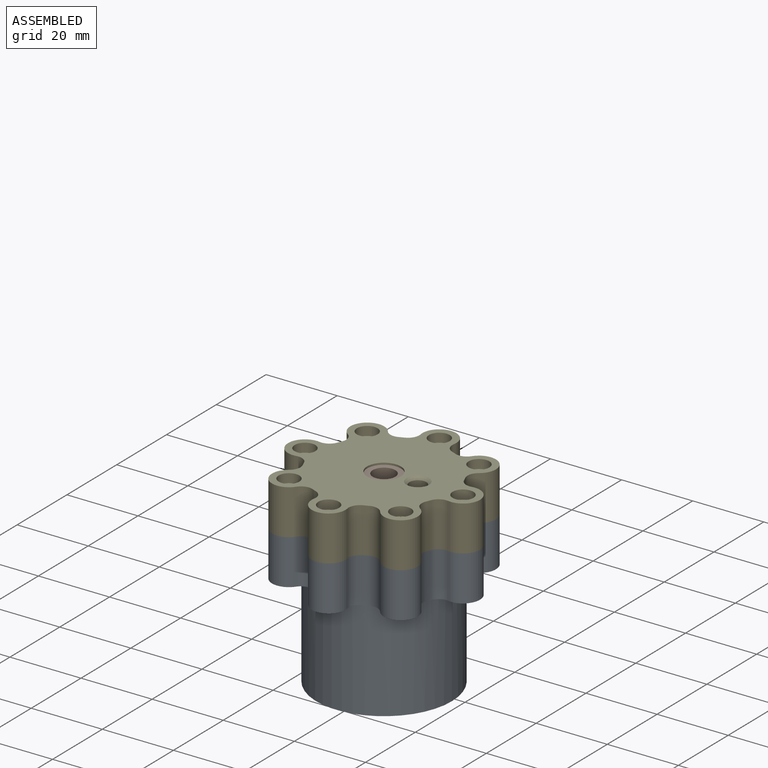
[diagram: assembled view]
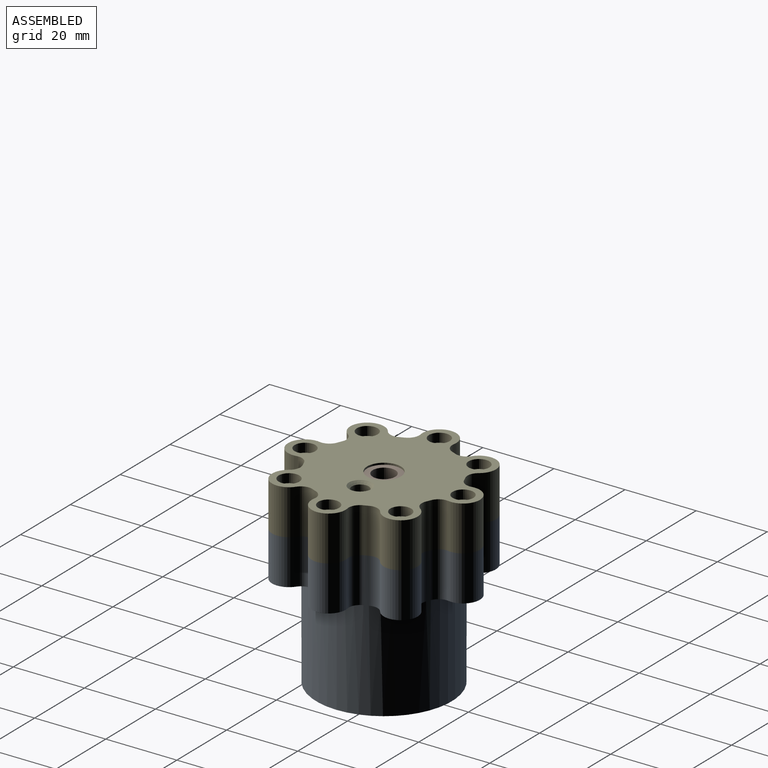
[diagram: assembled view, second angle]
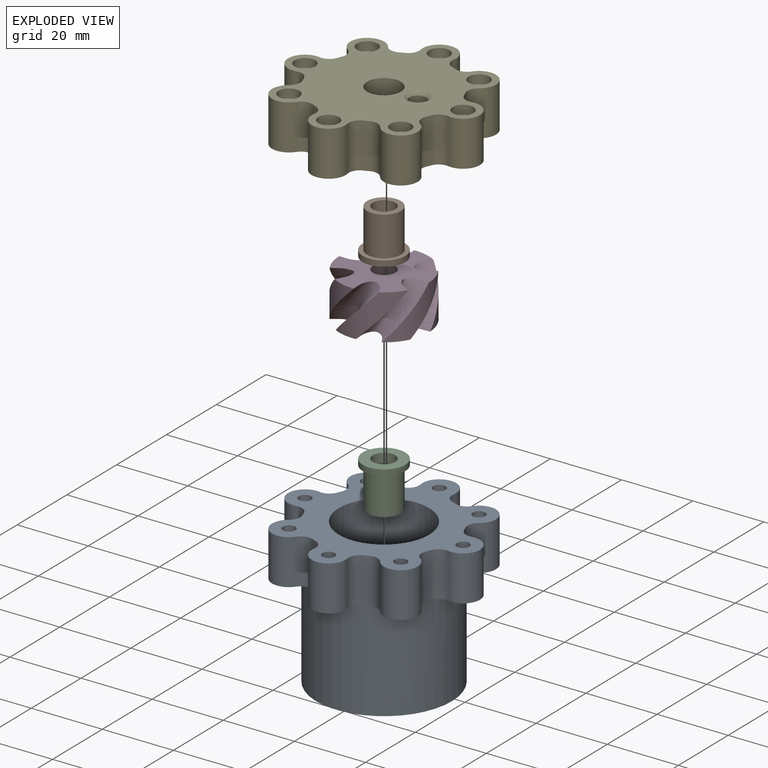
[diagram: exploded view]
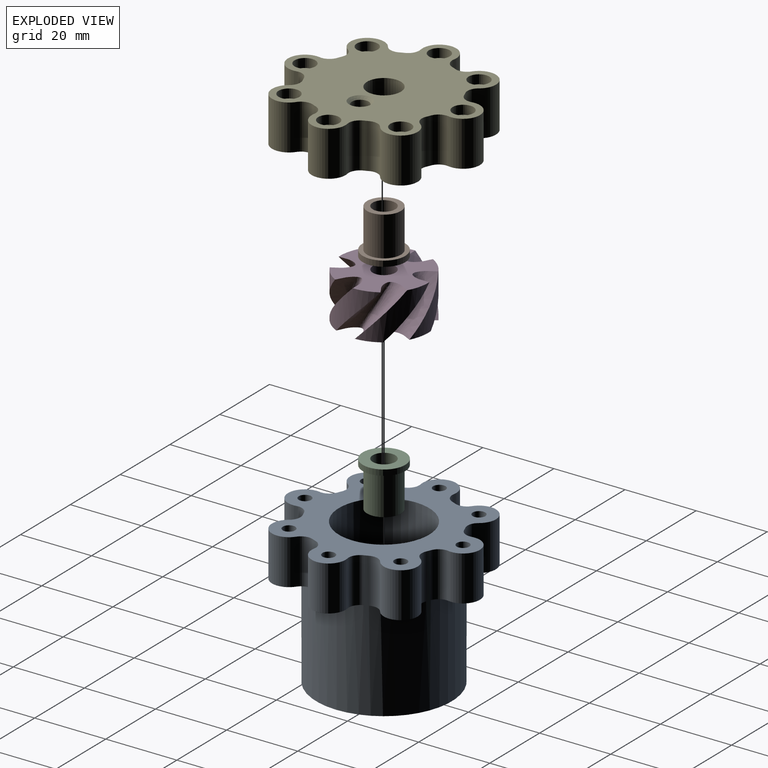
[diagram: exploded view, second angle]
ASSEMBLY  parts=5 mates=4
PART A: 129 faces, bbox 54x54x41.5 mm
  f0: cylinder r=2.53mm len=9.53mm, axis (0,0,1), area 4.3mm2, adj f30,f31,f115,f116
  f1: cylinder r=1.75mm len=10.16mm, axis (0,0,1), area 111.7mm2, adj f34,f114
  f2: plane 12.6x12.6mm, normal (0,0,-1), area 40.7mm2, adj f27,f35,f43,f44,f108,f109,f110,f111
  f3: cylinder r=1.75mm len=10.16mm, axis (0,0,1), area 111.7mm2, adj f34,f107
  f4: plane 13.39x9.15mm, normal (0,0,-1), area 40.7mm2, adj f27,f42,f45,f46,f101,f102,f103,f104
  f5: cylinder r=1.75mm len=10.16mm, axis (0,0,1), area 111.7mm2, adj f34,f100
  f6: plane 12.6x12.6mm, normal (0,0,-1), area 40.7mm2, adj f27,f41,f47,f48,f94,f95,f96,f97
  f7: cylinder r=1.75mm len=10.16mm, axis (0,0,1), area 111.7mm2, adj f34,f93
  f8: plane 13.39x9.15mm, normal (0,0,-1), area 40.7mm2, adj f27,f40,f49,f50,f87,f88,f89,f90
  f9: cylinder r=1.75mm len=10.16mm, axis (0,0,1), area 111.7mm2, adj f34,f86
  f10: plane 12.6x12.6mm, normal (0,0,-1), area 40.7mm2, adj f27,f39,f51,f52,f80,f81,f82,f83
  f11: cylinder r=1.75mm len=10.16mm, axis (0,0,1), area 111.7mm2, adj f34,f79
  f12: plane 13.39x9.15mm, normal (0,0,-1), area 40.7mm2, adj f27,f38,f53,f54,f73,f74,f75,f76
  f13: cylinder r=1.75mm len=10.16mm, axis (0,0,1), area 111.7mm2, adj f34,f72
  f14: plane 12.6x12.6mm, normal (0,0,-1), area 40.7mm2, adj f27,f37,f55,f56,f66,f67,f68,f69
  f15: cylinder r=1.75mm len=10.16mm, axis (0,0,1), area 111.7mm2, adj f34,f65
  f16: plane 13.39x9.15mm, normal (0,0,-1), area 40.7mm2, adj f27,f36,f57,f58,f59,f60,f61,f62
  f17: plane 25.08x22.56mm, normal (0,0,1), area 152.6mm2, adj f19,f20,f21,f22,f23,f24,f25,f26
  f18: cylinder r=4.76mm len=14.8mm, axis (0,0,1), area 442.7mm2, adj f31,f33
  f19: plane 25.4x1.49mm, normal (-0.5,0.87,0), area 43.7mm2, adj f17,f30,f120,f127
  f20: cylinder r=12.7mm len=40.64mm, axis (0,0,1), area 2536.1mm2, adj f17,f30,f34,f117,f118,f119,f120,f121
  f21: plane 25.4x1.72mm, normal (-1,0,0), area 43.7mm2, adj f17,f30,f121,f123
  f22: plane 25.4x1.49mm, normal (0.5,-0.87,0), area 43.7mm2, adj f17,f30,f119,f128
  f23: cylinder r=7.94mm len=25.4mm, axis (0,0,1), area 249mm2, adj f17,f30,f125,f128
  f24: plane 25.4x1.49mm, normal (0.5,0.87,0), area 43.7mm2, adj f17,f30,f117,f126
  f25: cylinder r=7.94mm len=25.4mm, axis (0,0,1), area 249mm2, adj f17,f30,f124,f126
  f26: cylinder r=7.94mm len=25.4mm, axis (0,0,1), area 249mm2, adj f17,f30,f123,f127
  f27: cylinder r=19.05mm len=40.64mm, axis (0,0,1), area 3474.5mm2, adj f2,f4,f6,f8,f10,f12,f14,f16
  f28: plane 25.4x1.49mm, normal (-0.5,-0.87,0), area 43.7mm2, adj f17,f30,f118,f125
  f29: plane 25.4x1.72mm, normal (1,0,0), area 43.7mm2, adj f17,f30,f122,f124
  f30: plane 38.1x38.1mm, normal (0,0,-1), area 877.8mm2, adj f0,f19,f20,f21,f22,f23,f24,f25
  f31: plane 9.53x9.53mm, normal (0,0,1), area 41.4mm2, adj f0,f18,f115,f116
  f32: cylinder r=6.22mm len=12.45mm, axis (0,0,1), area 42.2mm2, adj f17,f33
  f33: plane 12.45x12.45mm, normal (0,0,1), area 50.4mm2, adj f18,f32
  f34: plane 53.98x53.98mm, normal (0,0,1), area 1108mm2, adj f1,f3,f5,f7,f9,f11,f13,f15
  f35: cylinder r=4.76mm len=12.7mm, axis (0,0,1), area 211.7mm2, adj f2,f34,f43,f44
  f36: cylinder r=4.76mm len=12.7mm, axis (0,0,1), area 211.7mm2, adj f16,f34,f57,f58
  f37: cylinder r=4.76mm len=12.7mm, axis (0,0,1), area 211.7mm2, adj f14,f34,f55,f56
  f38: cylinder r=4.76mm len=12.7mm, axis (0,0,1), area 211.7mm2, adj f12,f34,f53,f54
  f39: cylinder r=4.76mm len=12.7mm, axis (0,0,1), area 211.7mm2, adj f10,f34,f51,f52
  f40: cylinder r=4.76mm len=12.7mm, axis (0,0,1), area 211.7mm2, adj f8,f34,f49,f50
  f41: cylinder r=4.76mm len=12.7mm, axis (0,0,1), area 211.7mm2, adj f6,f34,f47,f48
  f42: cylinder r=4.76mm len=12.7mm, axis (0,0,1), area 211.7mm2, adj f4,f34,f45,f46
  f43: cylinder r=3.17mm len=12.7mm, axis (0,0,-1), area 56.1mm2, adj f2,f27,f34,f35
  f44: cylinder r=3.17mm len=12.7mm, axis (0,0,-1), area 56.1mm2, adj f2,f27,f34,f35
  f45: cylinder r=3.17mm len=12.7mm, axis (0,0,-1), area 56.1mm2, adj f4,f27,f34,f42
  f46: cylinder r=3.17mm len=12.7mm, axis (0,0,-1), area 56.1mm2, adj f4,f27,f34,f42
  f47: cylinder r=3.17mm len=12.7mm, axis (0,0,-1), area 56.1mm2, adj f6,f27,f34,f41
  f48: cylinder r=3.17mm len=12.7mm, axis (0,0,-1), area 56.1mm2, adj f6,f27,f34,f41
  f49: cylinder r=3.17mm len=12.7mm, axis (0,0,-1), area 56.1mm2, adj f8,f27,f34,f40
  f50: cylinder r=3.17mm len=12.7mm, axis (0,0,-1), area 56.1mm2, adj f8,f27,f34,f40
  f51: cylinder r=3.17mm len=12.7mm, axis (0,0,-1), area 56.1mm2, adj f10,f27,f34,f39
  f52: cylinder r=3.17mm len=12.7mm, axis (0,0,-1), area 56.1mm2, adj f10,f27,f34,f39
  f53: cylinder r=3.17mm len=12.7mm, axis (0,0,-1), area 56.1mm2, adj f12,f27,f34,f38
  f54: cylinder r=3.17mm len=12.7mm, axis (0,0,-1), area 56.1mm2, adj f12,f27,f34,f38
  f55: cylinder r=3.17mm len=12.7mm, axis (0,0,-1), area 56.1mm2, adj f14,f27,f34,f37
  f56: cylinder r=3.17mm len=12.7mm, axis (0,0,-1), area 56.1mm2, adj f14,f27,f34,f37
  f57: cylinder r=3.17mm len=12.7mm, axis (0,0,-1), area 56.1mm2, adj f16,f27,f34,f36
  f58: cylinder r=3.17mm len=12.7mm, axis (0,0,-1), area 56.1mm2, adj f16,f27,f34,f36
  f59: plane 3.3x2.54mm, normal (0,-1,0), area 8.4mm2, adj f16,f60,f64,f65
  f60: plane 2.86x2.54mm, normal (-0.87,-0.5,0), area 8.4mm2, adj f16,f59,f61,f65
  f61: plane 2.86x2.54mm, normal (-0.87,0.5,0), area 8.4mm2, adj f16,f60,f62,f65
  f62: plane 3.3x2.54mm, normal (0,1,0), area 8.4mm2, adj f16,f61,f63,f65
  f63: plane 2.86x2.54mm, normal (0.87,0.5,0), area 8.4mm2, adj f16,f62,f64,f65
  f64: plane 2.86x2.54mm, normal (0.87,-0.5,0), area 8.4mm2, adj f16,f59,f63,f65
  f65: plane 6.6x5.72mm, normal (0,0,-1), area 18.7mm2, adj f15,f59,f60,f61,f62,f63,f64
  f66: plane 2.54x2.33mm, normal (0.71,-0.71,0), area 8.4mm2, adj f14,f67,f71,f72
  f67: plane 3.19x2.54mm, normal (-0.26,-0.97,0), area 8.4mm2, adj f14,f66,f68,f72
  f68: plane 3.19x2.54mm, normal (-0.97,-0.26,0), area 8.4mm2, adj f14,f67,f69,f72
  f69: plane 2.54x2.33mm, normal (-0.71,0.71,0), area 8.4mm2, adj f14,f68,f70,f72
  f70: plane 3.19x2.54mm, normal (0.26,0.97,0), area 8.4mm2, adj f14,f69,f71,f72
  f71: plane 3.19x2.54mm, normal (0.97,0.26,0), area 8.4mm2, adj f14,f66,f70,f72
  f72: plane 6.37x6.37mm, normal (0,0,-1), area 18.7mm2, adj f13,f66,f67,f68,f69,f70,f71
  f73: plane 3.3x2.54mm, normal (1,0,0), area 8.4mm2, adj f12,f74,f78,f79
  f74: plane 2.86x2.54mm, normal (0.5,-0.87,0), area 8.4mm2, adj f12,f73,f75,f79
  f75: plane 2.86x2.54mm, normal (-0.5,-0.87,0), area 8.4mm2, adj f12,f74,f76,f79
  f76: plane 3.3x2.54mm, normal (-1,0,0), area 8.4mm2, adj f12,f75,f77,f79
  f77: plane 2.86x2.54mm, normal (-0.5,0.87,0), area 8.4mm2, adj f12,f76,f78,f79
  f78: plane 2.86x2.54mm, normal (0.5,0.87,0), area 8.4mm2, adj f12,f73,f77,f79
  f79: plane 6.6x5.72mm, normal (0,0,-1), area 18.7mm2, adj f11,f73,f74,f75,f76,f77,f78
  f80: plane 2.54x2.33mm, normal (0.71,0.71,0), area 8.4mm2, adj f10,f81,f85,f86
  f81: plane 3.19x2.54mm, normal (0.97,-0.26,0), area 8.4mm2, adj f10,f80,f82,f86
  f82: plane 3.19x2.54mm, normal (0.26,-0.97,0), area 8.4mm2, adj f10,f81,f83,f86
  f83: plane 2.54x2.33mm, normal (-0.71,-0.71,0), area 8.4mm2, adj f10,f82,f84,f86
  f84: plane 3.19x2.54mm, normal (-0.97,0.26,0), area 8.4mm2, adj f10,f83,f85,f86
  f85: plane 3.19x2.54mm, normal (-0.26,0.97,0), area 8.4mm2, adj f10,f80,f84,f86
  f86: plane 6.37x6.37mm, normal (0,0,-1), area 18.7mm2, adj f9,f80,f81,f82,f83,f84,f85
  f87: plane 3.3x2.54mm, normal (0,1,0), area 8.4mm2, adj f8,f88,f92,f93
  f88: plane 2.86x2.54mm, normal (0.87,0.5,0), area 8.4mm2, adj f8,f87,f89,f93
  f89: plane 2.86x2.54mm, normal (0.87,-0.5,0), area 8.4mm2, adj f8,f88,f90,f93
  f90: plane 3.3x2.54mm, normal (0,-1,0), area 8.4mm2, adj f8,f89,f91,f93
  f91: plane 2.86x2.54mm, normal (-0.87,-0.5,0), area 8.4mm2, adj f8,f90,f92,f93
  f92: plane 2.86x2.54mm, normal (-0.87,0.5,0), area 8.4mm2, adj f8,f87,f91,f93
  f93: plane 6.6x5.72mm, normal (0,0,-1), area 18.7mm2, adj f7,f87,f88,f89,f90,f91,f92
  f94: plane 2.54x2.33mm, normal (-0.71,0.71,0), area 8.4mm2, adj f6,f95,f99,f100
  f95: plane 3.19x2.54mm, normal (0.26,0.97,0), area 8.4mm2, adj f6,f94,f96,f100
  f96: plane 3.19x2.54mm, normal (0.97,0.26,0), area 8.4mm2, adj f6,f95,f97,f100
  f97: plane 2.54x2.33mm, normal (0.71,-0.71,0), area 8.4mm2, adj f6,f96,f98,f100
  f98: plane 3.19x2.54mm, normal (-0.26,-0.97,0), area 8.4mm2, adj f6,f97,f99,f100
  f99: plane 3.19x2.54mm, normal (-0.97,-0.26,0), area 8.4mm2, adj f6,f94,f98,f100
  f100: plane 6.37x6.37mm, normal (0,0,-1), area 18.7mm2, adj f5,f94,f95,f96,f97,f98,f99
  f101: plane 3.3x2.54mm, normal (-1,0,0), area 8.4mm2, adj f4,f102,f106,f107
  f102: plane 2.86x2.54mm, normal (-0.5,0.87,0), area 8.4mm2, adj f4,f101,f103,f107
  f103: plane 2.86x2.54mm, normal (0.5,0.87,0), area 8.4mm2, adj f4,f102,f104,f107
  f104: plane 3.3x2.54mm, normal (1,0,0), area 8.4mm2, adj f4,f103,f105,f107
  f105: plane 2.86x2.54mm, normal (0.5,-0.87,0), area 8.4mm2, adj f4,f104,f106,f107
  f106: plane 2.86x2.54mm, normal (-0.5,-0.87,0), area 8.4mm2, adj f4,f101,f105,f107
  f107: plane 6.6x5.72mm, normal (0,0,-1), area 18.7mm2, adj f3,f101,f102,f103,f104,f105,f106
  f108: plane 2.54x2.33mm, normal (-0.71,-0.71,0), area 8.4mm2, adj f2,f109,f113,f114
  f109: plane 3.19x2.54mm, normal (-0.97,0.26,0), area 8.4mm2, adj f2,f108,f110,f114
  f110: plane 3.19x2.54mm, normal (-0.26,0.97,0), area 8.4mm2, adj f2,f109,f111,f114
  f111: plane 2.54x2.33mm, normal (0.71,0.71,0), area 8.4mm2, adj f2,f110,f112,f114
  f112: plane 3.19x2.54mm, normal (0.97,-0.26,0), area 8.4mm2, adj f2,f111,f113,f114
  f113: plane 3.19x2.54mm, normal (0.26,-0.97,0), area 8.4mm2, adj f2,f108,f112,f114
  f114: plane 6.37x6.37mm, normal (0,0,-1), area 18.7mm2, adj f1,f108,f109,f110,f111,f112,f113
  f115: bspline ~10.79x8.35mm, area 183.2mm2, adj f0,f30,f31,f116
  f116: bspline ~11x8.35mm, area 183mm2, adj f0,f30,f31,f115
  f117: cylinder r=1.59mm len=25.4mm, axis (0,0,1), area 78.1mm2, adj f17,f20,f24,f30
  f118: cylinder r=1.59mm len=25.4mm, axis (0,0,1), area 78.1mm2, adj f17,f20,f28,f30
  f119: cylinder r=1.59mm len=25.4mm, axis (0,0,1), area 78.1mm2, adj f17,f20,f22,f30
  f120: cylinder r=1.59mm len=25.4mm, axis (0,0,1), area 78.1mm2, adj f17,f19,f20,f30
  f121: cylinder r=1.59mm len=25.4mm, axis (0,0,1), area 78.1mm2, adj f17,f20,f21,f30
  f122: cylinder r=1.59mm len=25.4mm, axis (0,0,1), area 78.1mm2, adj f17,f20,f29,f30
  f123: cylinder r=1.59mm len=25.4mm, axis (0,0,1), area 46mm2, adj f17,f21,f26,f30
  f124: cylinder r=1.59mm len=25.4mm, axis (0,0,1), area 46mm2, adj f17,f25,f29,f30
  f125: cylinder r=1.59mm len=25.4mm, axis (0,0,1), area 46mm2, adj f17,f23,f28,f30
  f126: cylinder r=1.59mm len=25.4mm, axis (0,0,1), area 46mm2, adj f17,f24,f25,f30
  f127: cylinder r=1.59mm len=25.4mm, axis (0,0,1), area 46mm2, adj f17,f19,f26,f30
  f128: cylinder r=1.59mm len=25.4mm, axis (0,0,1), area 46mm2, adj f17,f22,f23,f30
PART B: 6 faces, bbox 11.9x11.9x12.7 mm
  f0: cylinder r=3.17mm len=12.7mm, axis (0,0,-1), area 253.4mm2, adj f2,f3
  f1: cylinder r=4.76mm len=11.11mm, axis (0,0,-1), area 332.5mm2, adj f2,f5
  f2: plane 9.53x9.53mm, normal (0,0,1), area 39.6mm2, adj f0,f1
  f3: plane 11.94x11.94mm, normal (0,0,-1), area 80.3mm2, adj f0,f4
  f4: cylinder r=5.97mm len=11.94mm, axis (0,0,-1), area 59.5mm2, adj f3,f5
  f5: plane 11.94x11.94mm, normal (0,0,1), area 40.7mm2, adj f1,f4
PART C: same geometry as B
PART D: 27 faces, bbox 25.7x25.8x29.1 mm
  f0: cylinder r=12.57mm len=12.85mm, axis (0,0,-1), area 87.3mm2, adj f7,f8,f23,f24
  f1: cylinder r=12.57mm len=17.12mm, axis (0,0,-1), area 87.3mm2, adj f7,f8,f20,f21
  f2: cylinder r=12.57mm len=16.8mm, axis (0,0,-1), area 87.3mm2, adj f7,f8,f17,f18
  f3: cylinder r=12.57mm len=12.85mm, axis (0,0,-1), area 87.3mm2, adj f7,f8,f14,f15
  f4: cylinder r=12.57mm len=17.12mm, axis (0,0,-1), area 87.3mm2, adj f7,f8,f11,f12
  f5: cylinder r=3.17mm len=12.7mm, axis (0,0,-1), area 253.4mm2, adj f7,f8
  f6: cylinder r=12.57mm len=16.8mm, axis (0,0,-1), area 87.3mm2, adj f7,f8,f9,f26
  f7: plane 25.15x25.15mm, normal (0,0,1), area 317.4mm2, adj f0,f1,f2,f3,f4,f5,f6,f9
  f8: plane 25.15x25.12mm, normal (0,0,-1), area 317.5mm2, adj f0,f1,f2,f3,f4,f5,f6,f9
  f9: bspline ~17.1x14.13mm, area 40.6mm2, adj f6,f7,f8,f10
  f10: bspline ~29.15x12.46mm, area 117.4mm2, adj f7,f8,f9,f11
  f11: bspline ~17.1x12.26mm, area 40.6mm2, adj f4,f7,f8,f10
  f12: bspline ~17.1x15.63mm, area 40.6mm2, adj f4,f7,f8,f13
  f13: bspline ~29.15x15.76mm, area 117.4mm2, adj f7,f8,f12,f14
  f14: bspline ~17.1x14.59mm, area 40.6mm2, adj f3,f7,f8,f13
  f15: bspline ~17.1x12.95mm, area 40.6mm2, adj f3,f7,f8,f16
  f16: bspline ~29.15x14.84mm, area 117.4mm2, adj f7,f8,f15,f17
  f17: bspline ~12.7x12.06mm, area 40.6mm2, adj f2,f7,f8,f16
  f18: bspline ~17.1x14.13mm, area 40.6mm2, adj f2,f7,f8,f19
  f19: bspline ~29.15x12.46mm, area 117.4mm2, adj f7,f8,f18,f20
  f20: bspline ~17.1x12.26mm, area 40.6mm2, adj f1,f7,f8,f19
  f21: bspline ~17.1x15.63mm, area 40.6mm2, adj f1,f7,f8,f22
  f22: bspline ~29.15x15.76mm, area 117.4mm2, adj f7,f8,f21,f23
  f23: bspline ~17.1x14.59mm, area 40.6mm2, adj f0,f7,f8,f22
  f24: bspline ~17.1x12.95mm, area 40.6mm2, adj f0,f7,f8,f25
  f25: bspline ~29.15x14.84mm, area 117.4mm2, adj f7,f8,f24,f26
  f26: bspline ~17.1x15.5mm, area 40.6mm2, adj f6,f7,f8,f25
PART E: 64 faces, bbox 54x54x12.7 mm
  f0: cylinder r=4.76mm len=11.62mm, axis (0,0,-1), area 347.7mm2, adj f27,f45
  f1: cylinder r=19.05mm len=12.7mm, axis (0,0,-1), area 16.3mm2, adj f26,f27,f60,f61
  f2: cylinder r=4.76mm len=12.7mm, axis (0,0,-1), area 211.7mm2, adj f26,f27,f46,f61
  f3: cylinder r=19.05mm len=12.7mm, axis (0,0,-1), area 16.3mm2, adj f26,f27,f46,f47
  f4: cylinder r=4.76mm len=12.7mm, axis (0,0,-1), area 211.7mm2, adj f26,f27,f47,f48
  f5: cylinder r=19.05mm len=12.7mm, axis (0,0,-1), area 16.3mm2, adj f26,f27,f48,f49
  f6: cylinder r=4.76mm len=12.7mm, axis (0,0,-1), area 211.7mm2, adj f26,f27,f49,f50
  f7: cylinder r=19.05mm len=12.7mm, axis (0,0,-1), area 16.3mm2, adj f26,f27,f50,f51
  f8: cylinder r=4.76mm len=12.7mm, axis (0,0,-1), area 211.7mm2, adj f26,f27,f51,f52
  f9: cylinder r=19.05mm len=12.7mm, axis (0,0,-1), area 16.3mm2, adj f26,f27,f52,f53
  f10: cylinder r=4.76mm len=12.7mm, axis (0,0,-1), area 211.7mm2, adj f26,f27,f53,f54
  f11: cylinder r=19.05mm len=12.7mm, axis (0,0,-1), area 16.3mm2, adj f26,f27,f54,f55
  f12: cylinder r=4.76mm len=12.7mm, axis (0,0,-1), area 211.7mm2, adj f26,f27,f55,f56
  f13: cylinder r=19.05mm len=12.7mm, axis (0,0,-1), area 16.3mm2, adj f26,f27,f56,f57
  f14: cylinder r=4.76mm len=12.7mm, axis (0,0,-1), area 211.7mm2, adj f26,f27,f57,f58
  f15: cylinder r=19.05mm len=12.7mm, axis (0,0,-1), area 16.3mm2, adj f26,f27,f58,f59
  f16: cylinder r=2.38mm len=11.11mm, axis (0,0,-1), area 166.3mm2, adj f62,f63
  f17: cylinder r=1.75mm len=10.16mm, axis (0,0,-1), area 111.7mm2, adj f26,f35
  f18: cylinder r=1.75mm len=10.16mm, axis (0,0,-1), area 111.7mm2, adj f26,f37
  f19: cylinder r=1.75mm len=10.16mm, axis (0,0,-1), area 111.7mm2, adj f26,f39
  f20: cylinder r=1.75mm len=10.16mm, axis (0,0,-1), area 111.7mm2, adj f26,f41
  f21: cylinder r=1.75mm len=10.16mm, axis (0,0,-1), area 111.7mm2, adj f26,f43
  f22: cylinder r=1.75mm len=10.16mm, axis (0,0,-1), area 111.7mm2, adj f26,f29
  f23: cylinder r=1.75mm len=10.16mm, axis (0,0,-1), area 111.7mm2, adj f26,f31
  f24: cylinder r=1.75mm len=10.16mm, axis (0,0,-1), area 111.7mm2, adj f26,f33
  f25: cylinder r=4.76mm len=12.7mm, axis (0,0,-1), area 211.7mm2, adj f26,f27,f59,f60
  f26: plane 53.98x53.98mm, normal (0,0,1), area 1461.3mm2, adj f1,f2,f3,f4,f5,f6,f7,f8
  f27: plane 53.98x53.98mm, normal (0,0,-1), area 1374.3mm2, adj f0,f1,f2,f3,f4,f5,f6,f7
  f28: cylinder r=2.92mm len=5.84mm, axis (0,0,-1), area 46.6mm2, adj f27,f29
  f29: plane 5.84x5.84mm, normal (0,0,-1), area 17.2mm2, adj f22,f28
  f30: cylinder r=2.92mm len=5.84mm, axis (0,0,-1), area 46.6mm2, adj f27,f31
  f31: plane 5.84x5.84mm, normal (0,0,-1), area 17.2mm2, adj f23,f30
  f32: cylinder r=2.92mm len=5.84mm, axis (0,0,-1), area 46.6mm2, adj f27,f33
  f33: plane 5.84x5.84mm, normal (0,0,-1), area 17.2mm2, adj f24,f32
  f34: cylinder r=2.92mm len=5.84mm, axis (0,0,-1), area 46.6mm2, adj f27,f35
  f35: plane 5.84x5.84mm, normal (0,0,-1), area 17.2mm2, adj f17,f34
  f36: cylinder r=2.92mm len=5.84mm, axis (0,0,-1), area 46.6mm2, adj f27,f37
  f37: plane 5.84x5.84mm, normal (0,0,-1), area 17.2mm2, adj f18,f36
  f38: cylinder r=2.92mm len=5.84mm, axis (0,0,-1), area 46.6mm2, adj f27,f39
  f39: plane 5.84x5.84mm, normal (0,0,-1), area 17.2mm2, adj f19,f38
  f40: cylinder r=2.92mm len=5.84mm, axis (0,0,-1), area 46.6mm2, adj f27,f41
  f41: plane 5.84x5.84mm, normal (0,0,-1), area 17.2mm2, adj f20,f40
  f42: cylinder r=2.92mm len=5.84mm, axis (0,0,-1), area 46.6mm2, adj f27,f43
  f43: plane 5.84x5.84mm, normal (0,0,-1), area 17.2mm2, adj f21,f42
  f44: cylinder r=6.22mm len=12.45mm, axis (0,0,1), area 42.2mm2, adj f26,f45
  f45: plane 12.45x12.45mm, normal (0,0,1), area 50.4mm2, adj f0,f44
  f46: cylinder r=3.17mm len=12.7mm, axis (0,0,1), area 56.1mm2, adj f2,f3,f26,f27
  f47: cylinder r=3.17mm len=12.7mm, axis (0,0,1), area 56.1mm2, adj f3,f4,f26,f27
  f48: cylinder r=3.17mm len=12.7mm, axis (0,0,1), area 56.1mm2, adj f4,f5,f26,f27
  f49: cylinder r=3.17mm len=12.7mm, axis (0,0,1), area 56.1mm2, adj f5,f6,f26,f27
  f50: cylinder r=3.17mm len=12.7mm, axis (0,0,1), area 56.1mm2, adj f6,f7,f26,f27
  f51: cylinder r=3.17mm len=12.7mm, axis (0,0,1), area 56.1mm2, adj f7,f8,f26,f27
  f52: cylinder r=3.17mm len=12.7mm, axis (0,0,1), area 56.1mm2, adj f8,f9,f26,f27
  f53: cylinder r=3.17mm len=12.7mm, axis (0,0,1), area 56.1mm2, adj f9,f10,f26,f27
  f54: cylinder r=3.17mm len=12.7mm, axis (0,0,1), area 56.1mm2, adj f10,f11,f26,f27
  f55: cylinder r=3.17mm len=12.7mm, axis (0,0,1), area 56.1mm2, adj f11,f12,f26,f27
  f56: cylinder r=3.17mm len=12.7mm, axis (0,0,1), area 56.1mm2, adj f12,f13,f26,f27
  f57: cylinder r=3.17mm len=12.7mm, axis (0,0,1), area 56.1mm2, adj f13,f14,f26,f27
  f58: cylinder r=3.17mm len=12.7mm, axis (0,0,1), area 56.1mm2, adj f14,f15,f26,f27
  f59: cylinder r=3.17mm len=12.7mm, axis (0,0,1), area 56.1mm2, adj f15,f25,f26,f27
  f60: cylinder r=3.17mm len=12.7mm, axis (0,0,1), area 56.1mm2, adj f1,f25,f26,f27
  f61: cylinder r=3.17mm len=12.7mm, axis (0,0,1), area 56.1mm2, adj f1,f2,f26,f27
  f62: cone r=2.38mm half-angle=45deg, axis (0,0,1), area 19.6mm2, adj f16,f26
  f63: cone r=3.17mm half-angle=45deg, axis (0,0,-1), area 19.6mm2, adj f16,f27
PLACE A t=(-0.11,-3.82,-3.39)mm fixed
PLACE B t=(-0.11,-3.82,11.35)mm
PLACE C rot(axis=(1,0,0),180deg) t=(-0.11,-3.82,-2.88)mm
PLACE D t=(-0.11,-3.82,-2.88)mm
PLACE E rot(axis=(0,1,0),180deg) t=(-0.11,-3.82,24.55)mm
MATE revolute D.f5 <-> C.f0  axis (0,0,-1) through (-0.11,-3.82,-2.88)mm
MATE fastened E.f44 <-> A.f27  axis (0,0,-1) through (-0.11,-3.82,11.85)mm
MATE fastened A.f0 <-> C.f4  axis (0,0,1) through (-0.11,-3.82,-4.47)mm
MATE fastened E.f0 <-> B.f1  axis (0,0,-1) through (-0.11,-3.82,12.93)mm
